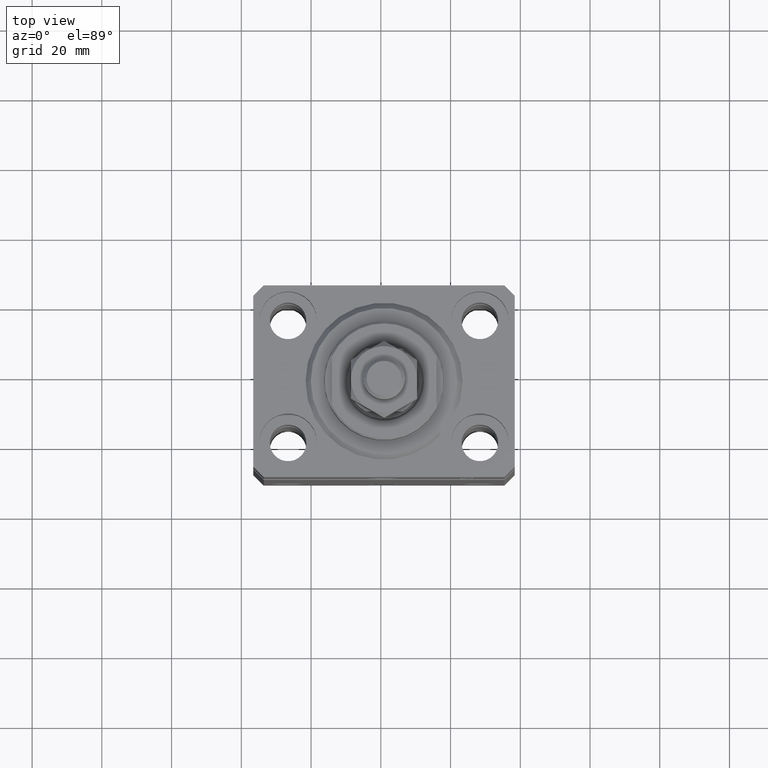
[diagram: clean part render]
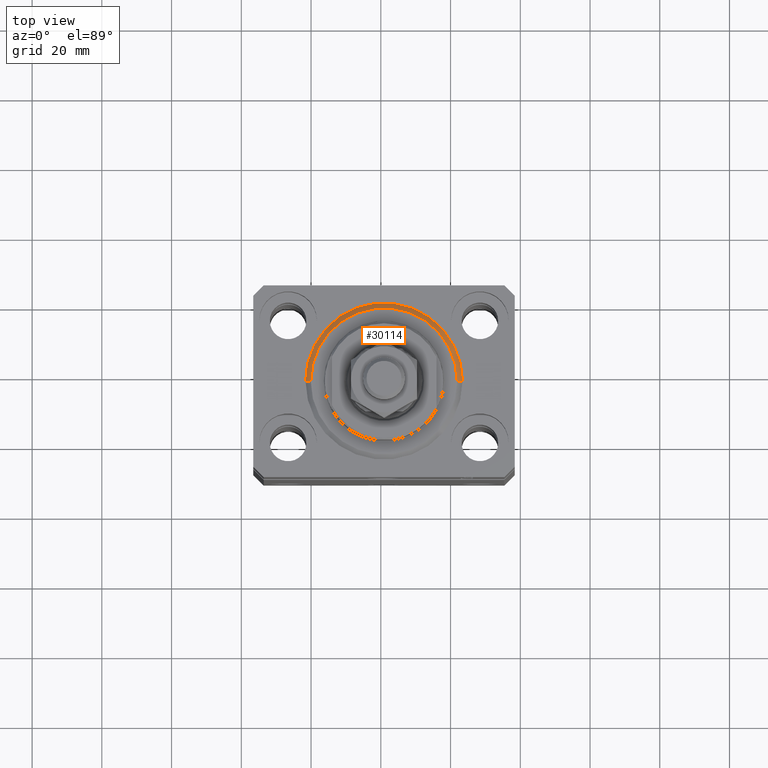
[diagram: same view with one face highlighted and labeled with its STEP entity id]
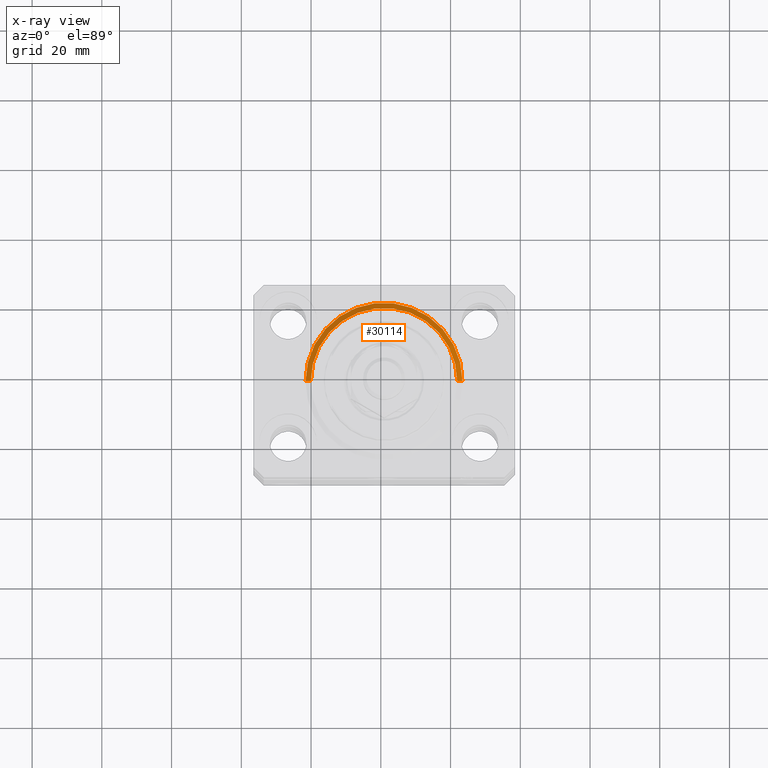
[diagram: x-ray of the same camera — body ghosted, the highlighted face saturated]
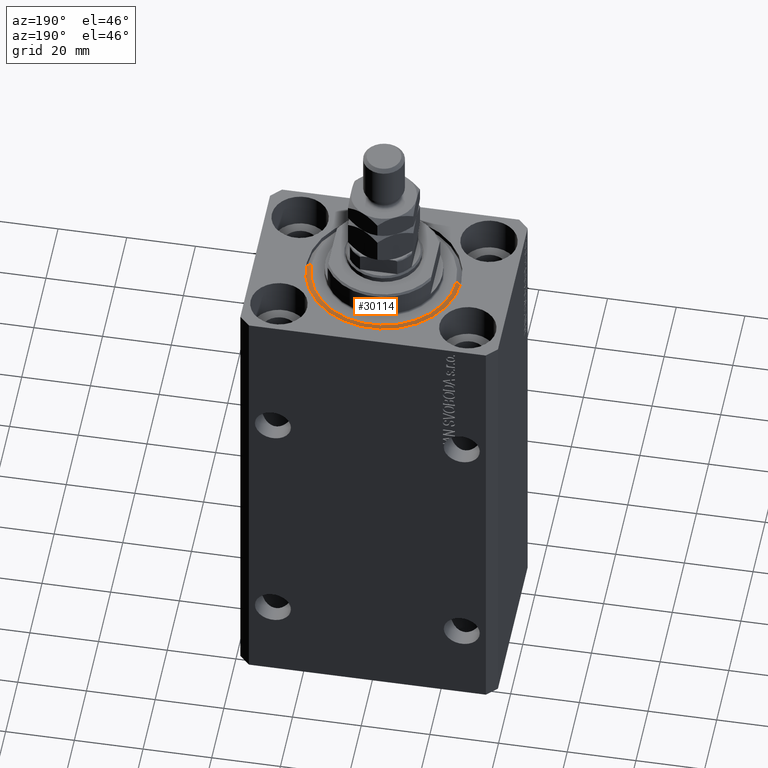
[diagram: same view with one face highlighted and labeled with its STEP entity id]
A machine part, top view. The second image highlights one B-rep face of the part: STEP entity #30114.
The next image is the same camera in x-ray: the body ghosted, the highlighted face saturated — about 0% of this face is hidden behind the body in this view.
A second angle (auxiliary view) of the same face is appended — the face is thin or edge-on in the first view.
In plain terms, the highlighted conical surface has half-angle 45 deg.
Its self-contained STEP definition (entity closure, byte-faithful):
#2383 = EDGE_CURVE ( 'NONE', #2747, #23610, #44931, .T. ) ;
#2747 = VERTEX_POINT ( 'NONE', #15520 ) ;
#3825 = DIRECTION ( 'NONE',  ( -0.000000000000000000, -0.000000000000000000, 1.000000000000000000 ) ) ;
#4260 = EDGE_CURVE ( 'NONE', #21942, #6209, #43507, .T. ) ;
#6209 = VERTEX_POINT ( 'NONE', #30879 ) ;
#10458 = DIRECTION ( 'NONE',  ( 1.000000000000000000, 0.000000000000000000, 0.000000000000000000 ) ) ;
#10699 = ORIENTED_EDGE ( 'NONE', *, *, #4260, .F. ) ;
#12933 = LINE ( 'NONE', #27200, #38453 ) ;
#13530 = EDGE_CURVE ( 'NONE', #23610, #21942, #12933, .T. ) ;
#13616 = AXIS2_PLACEMENT_3D ( 'NONE', #13967, #28221, #10458 ) ;
#13967 = CARTESIAN_POINT ( 'NONE',  ( 0.000000000000000000, 0.000000000000000000, 0.000000000000000000 ) ) ;
#15370 = AXIS2_PLACEMENT_3D ( 'NONE', #27433, #38618, #27891 ) ;
#15520 = CARTESIAN_POINT ( 'NONE',  ( -20.99999999999998934, 2.663606788145492628E-15, 0.000000000000000000 ) ) ;
#17138 = FACE_OUTER_BOUND ( 'NONE', #17295, .T. ) ;
#17295 = EDGE_LOOP ( 'NONE', ( #30554, #32921, #10699, #29302 ) ) ;
#18089 = DIRECTION ( 'NONE',  ( 1.000000000000000000, 0.000000000000000000, 0.000000000000000000 ) ) ;
#21448 = CARTESIAN_POINT ( 'NONE',  ( 22.50000000000000355, 2.755455298081545172E-15, 1.500000000000001332 ) ) ;
#21942 = VERTEX_POINT ( 'NONE', #21448 ) ;
#23610 = VERTEX_POINT ( 'NONE', #28510 ) ;
#26532 = DIRECTION ( 'NONE',  ( -0.7071067811865500152, 8.659560562354963673E-17, 0.7071067811865451302 ) ) ;
#27200 = CARTESIAN_POINT ( 'NONE',  ( 22.50000000000000355, 0.000000000000000000, 1.500000000000001332 ) ) ;
#27433 = CARTESIAN_POINT ( 'NONE',  ( 0.000000000000000000, 0.000000000000000000, 1.500000000000001332 ) ) ;
#27891 = DIRECTION ( 'NONE',  ( 1.000000000000000000, 0.000000000000000000, 0.000000000000000000 ) ) ;
#28221 = DIRECTION ( 'NONE',  ( -0.000000000000000000, -0.000000000000000000, -1.000000000000000000 ) ) ;
#28510 = CARTESIAN_POINT ( 'NONE',  ( 20.99999999999998934, 0.000000000000000000, 0.000000000000000000 ) ) ;
#29302 = ORIENTED_EDGE ( 'NONE', *, *, #13530, .F. ) ;
#30034 = CARTESIAN_POINT ( 'NONE',  ( -22.50000000000000355, 2.755455298081545172E-15, 1.500000000000001332 ) ) ;
#30114 = ADVANCED_FACE ( 'NONE', ( #17138 ), #37745, .T. ) ;
#30554 = ORIENTED_EDGE ( 'NONE', *, *, #2383, .F. ) ;
#30879 = CARTESIAN_POINT ( 'NONE',  ( -22.50000000000000355, 0.000000000000000000, 1.500000000000001332 ) ) ;
#32921 = ORIENTED_EDGE ( 'NONE', *, *, #40800, .T. ) ;
#33793 = AXIS2_PLACEMENT_3D ( 'NONE', #35842, #3825, #18089 ) ;
#34235 = VECTOR ( 'NONE', #26532, 1000.000000000000114 ) ;
#35842 = CARTESIAN_POINT ( 'NONE',  ( 0.000000000000000000, 0.000000000000000000, 1.500000000000001332 ) ) ;
#37745 = CONICAL_SURFACE ( 'NONE', #15370, 22.50000000000000355, 0.7853981633974517207 ) ;
#38453 = VECTOR ( 'NONE', #41432, 1000.000000000000114 ) ;
#38618 = DIRECTION ( 'NONE',  ( -0.000000000000000000, -0.000000000000000000, 1.000000000000000000 ) ) ;
#40540 = LINE ( 'NONE', #30034, #34235 ) ;
#40800 = EDGE_CURVE ( 'NONE', #2747, #6209, #40540, .T. ) ;
#41432 = DIRECTION ( 'NONE',  ( 0.7071067811865500152, 0.000000000000000000, 0.7071067811865451302 ) ) ;
#43507 = CIRCLE ( 'NONE', #33793, 22.50000000000000355 ) ;
#44931 = CIRCLE ( 'NONE', #13616, 20.99999999999998934 ) ;